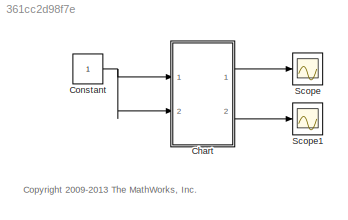
MODEL slx_361cc2d98f7e
KIND model
CONFIG AbsTol = auto
CONFIG EnableMultiTasking = on
CONFIG FixedStep = 0.01
CONFIG MaxStep = auto
CONFIG MinStep = auto
CONFIG RelTol = 1e-3
CONFIG SampleTimeConstraint = Unconstrained
CONFIG Solver = FixedStepDiscrete
CONFIG SolverName = FixedStepDiscrete
CONFIG StartTime = 0.0
CONFIG StopTime = 10.0
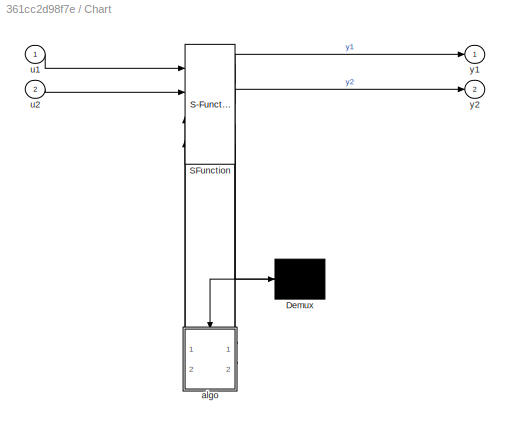
BLOCK [SubSystem] Chart
  ErrorFcn = Stateflow.Translate.translate
  PermitHierarchicalResolution = ExplicitOnly
  Ports = [2, 2]
  RequestExecContextInheritance = off
  SFBlockType = Chart
  TreatAsAtomicUnit = on
  Variant = off
BLOCK [Demux] Chart/ Demux 
  Outputs = 1
  Ports = [1, 1]
BLOCK [S-Function] Chart/ SFunction 
  EnableBusSupport = off
  FunctionName = sf_sfun
  PortCounts = [4 5]
  Ports = [4, 5]
  SFcnIsStateOwnerBlock = off
  SFunctionDeploymentMode = off
  Tag = Stateflow S-Function sf_slscheduler 1
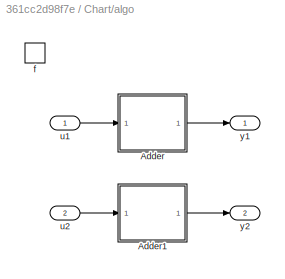
BLOCK [SubSystem] Chart/algo
  Ports = [2, 2, 0, 1]
  PreDeleteFcn = Stateflow.SLINSF.SimulinkMan.removePreDeleteFcn
  RequestExecContextInheritance = off
  UndoDeleteFcn = Stateflow.SLINSF.SimulinkMan.restorePreDeleteFcn
  Variant = off
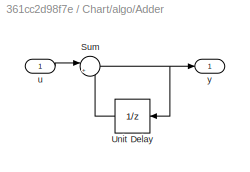
BLOCK [SubSystem] Chart/algo/Adder
  Ports = [1, 1]
  RequestExecContextInheritance = off
  Variant = off
BLOCK [Sum] Chart/algo/Adder/Sum
  IconShape = round
  InputSameDT = off
  Inputs = |++
  OutDataTypeStr = Inherit: Inherit via internal rule
  Ports = [2, 1]
  SaturateOnIntegerOverflow = off
BLOCK [UnitDelay] Chart/algo/Adder/Unit Delay
  SampleTime = -1
BLOCK [Inport] Chart/algo/Adder/u
  IconDisplay = Port number
BLOCK [Outport] Chart/algo/Adder/y
  IconDisplay = Port number
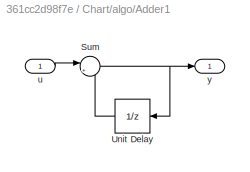
BLOCK [SubSystem] Chart/algo/Adder1
  Ports = [1, 1]
  RequestExecContextInheritance = off
  Variant = off
BLOCK [Sum] Chart/algo/Adder1/Sum
  IconShape = round
  InputSameDT = off
  Inputs = |++
  OutDataTypeStr = Inherit: Inherit via internal rule
  Ports = [2, 1]
  SaturateOnIntegerOverflow = off
BLOCK [UnitDelay] Chart/algo/Adder1/Unit Delay
  SampleTime = -1
BLOCK [Inport] Chart/algo/Adder1/u
  IconDisplay = Port number
BLOCK [Outport] Chart/algo/Adder1/y
  IconDisplay = Port number
BLOCK [TriggerPort] Chart/algo/f
  CopyFcn = Stateflow.SLINSF.SimulinkMan.removeBlockPreDeleteFcn
  Ports = []
  PreDeleteFcn = Stateflow.SLINSF.SimulinkMan.unsafePredeleteFcn
  TriggerType = function-call
  VariantControl = (inherit)
BLOCK [Inport] Chart/algo/u1
  IconDisplay = Port number
BLOCK [Inport] Chart/algo/u2
  IconDisplay = Port number
  Port = 2
BLOCK [Outport] Chart/algo/y1
  IconDisplay = Port number
BLOCK [Outport] Chart/algo/y2
  IconDisplay = Port number
  Port = 2
BLOCK [Inport] Chart/u1
  IconDisplay = Port number
BLOCK [Inport] Chart/u2
  IconDisplay = Port number
  Port = 2
BLOCK [Outport] Chart/y1
  IconDisplay = Port number
BLOCK [Outport] Chart/y2
  IconDisplay = Port number
  Port = 2
BLOCK [Constant] Constant
BLOCK [Scope] Scope
  NumInputPorts = 1
  Ports = [1]
  ScopeSpecificationString = Simulink.scopes.TimeScopeBlockCfg('CurrentConfiguration', extmgr.ConfigurationSet(extmgr.Configuration('Core','General UI',true),extmgr.Configuration('Core','Source UI',true),extmgr.Configuration('Sources','WiredSimulink',true,'DataLoggingSaveFormat','StructureWithTime','DataLoggingLimitDataPoints',true,'DataLoggingDecimation','1'),extmgr.Configuration('Visuals','Time Domain',true,'SerializedDispl...<+1698ch>
BLOCK [Scope] Scope1
  NumInputPorts = 1
  Ports = [1]
  ScopeSpecificationString = Simulink.scopes.TimeScopeBlockCfg('CurrentConfiguration', extmgr.ConfigurationSet(extmgr.Configuration('Core','General UI',true),extmgr.Configuration('Core','Source UI',true),extmgr.Configuration('Sources','WiredSimulink',true,'DataLoggingVariableName','ScopeData1','DataLoggingSaveFormat','StructureWithTime','DataLoggingLimitDataPoints',true,'DataLoggingDecimation','1'),extmgr.Configuration('Visua...<+1737ch>
ANNOTATION (root): <copyright redacted>
LINE Chart:1 -> Scope:1
LINE Chart:2 -> Scope1:1
NET Constant:1 -> Chart:1, Chart:2
note: NET lines group one-source signal fan-out (src -> all destinations, sorted); 1:1 wires keep LINE
CHART Chart states=3 transitions=3
  STATE_LABEL 'FAST\non every(2,tick): [y1,y2] = algo(u1,u2);'
  STATE_LABEL 'SLOW\non every(5,tick): [y1,y2] = algo(u1,u2);'
  STATE_LABEL '[y1,y2] = algo(u1,u2)'
